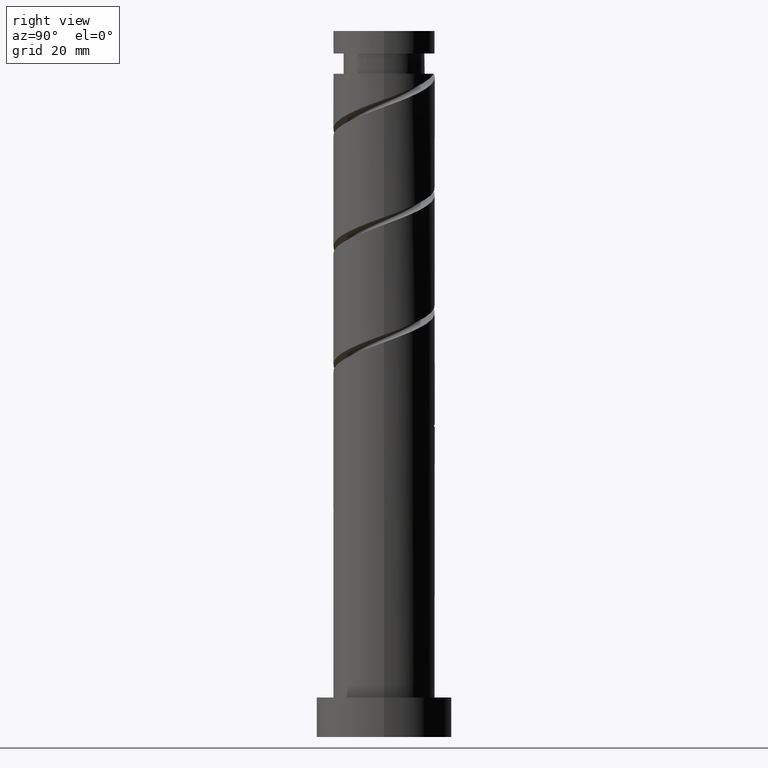
[diagram: clean part render]
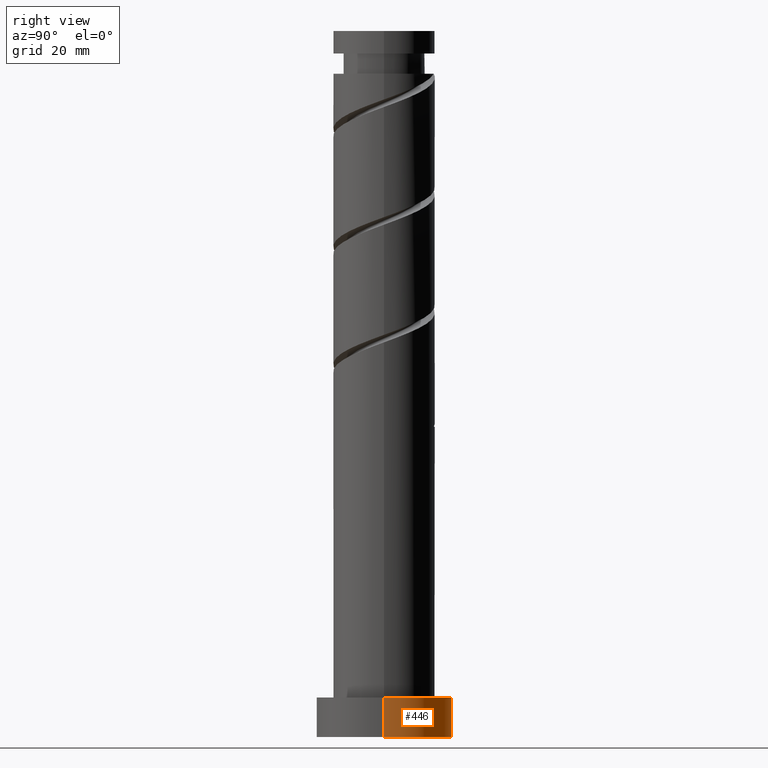
[diagram: same view with one face highlighted and labeled with its STEP entity id]
A machine part, right view. The second image highlights one B-rep face of the part: STEP entity #446.
In plain terms, the highlighted cylindrical surface (partial cylindrical patch) has radius 12 mm, axis along (-0, -0, -1).
Its self-contained STEP definition (entity closure, byte-faithful):
#29 = AXIS2_PLACEMENT_3D ( 'NONE', #1322, #106, #619 ) ;
#32 = DIRECTION ( 'NONE',  ( -0.000000000000000000, -0.000000000000000000, -1.000000000000000000 ) ) ;
#41 = EDGE_LOOP ( 'NONE', ( #587, #457, #765, #1501 ) ) ;
#45 = DIRECTION ( 'NONE',  ( 0.000000000000000000, 0.000000000000000000, 1.000000000000000000 ) ) ;
#49 = VERTEX_POINT ( 'NONE', #1271 ) ;
#68 = VERTEX_POINT ( 'NONE', #878 ) ;
#79 = EDGE_CURVE ( 'NONE', #551, #68, #1400, .T. ) ;
#84 = AXIS2_PLACEMENT_3D ( 'NONE', #1505, #45, #536 ) ;
#91 = LINE ( 'NONE', #709, #298 ) ;
#106 = DIRECTION ( 'NONE',  ( 0.000000000000000000, 0.000000000000000000, 1.000000000000000000 ) ) ;
#190 = CARTESIAN_POINT ( 'NONE',  ( -12.00000000000000178, 0.000000000000000000, 7.000000000000000000 ) ) ;
#233 = EDGE_CURVE ( 'NONE', #1275, #49, #91, .T. ) ;
#298 = VECTOR ( 'NONE', #821, 1000.000000000000000 ) ;
#426 = CARTESIAN_POINT ( 'NONE',  ( 12.00000000000000178, 1.469576158976824144E-15, 7.000000000000000000 ) ) ;
#446 = ADVANCED_FACE ( 'NONE', ( #978 ), #492, .T. ) ;
#457 = ORIENTED_EDGE ( 'NONE', *, *, #79, .T. ) ;
#492 = CYLINDRICAL_SURFACE ( 'NONE', #1509, 12.00000000000000178 ) ;
#506 = CARTESIAN_POINT ( 'NONE',  ( 0.000000000000000000, 0.000000000000000000, 7.000000000000000000 ) ) ;
#536 = DIRECTION ( 'NONE',  ( 1.000000000000000000, 0.000000000000000000, 0.000000000000000000 ) ) ;
#551 = VERTEX_POINT ( 'NONE', #426 ) ;
#584 = VECTOR ( 'NONE', #650, 1000.000000000000000 ) ;
#587 = ORIENTED_EDGE ( 'NONE', *, *, #979, .F. ) ;
#619 = DIRECTION ( 'NONE',  ( 1.000000000000000000, 0.000000000000000000, 0.000000000000000000 ) ) ;
#650 = DIRECTION ( 'NONE',  ( -0.000000000000000000, -0.000000000000000000, -1.000000000000000000 ) ) ;
#709 = CARTESIAN_POINT ( 'NONE',  ( -12.00000000000000178, 0.000000000000000000, 7.000000000000000000 ) ) ;
#716 = CIRCLE ( 'NONE', #29, 12.00000000000000178 ) ;
#765 = ORIENTED_EDGE ( 'NONE', *, *, #1366, .T. ) ;
#821 = DIRECTION ( 'NONE',  ( -0.000000000000000000, -0.000000000000000000, -1.000000000000000000 ) ) ;
#878 = CARTESIAN_POINT ( 'NONE',  ( 12.00000000000000178, 1.469576158976824144E-15, 0.000000000000000000 ) ) ;
#896 = CARTESIAN_POINT ( 'NONE',  ( 12.00000000000000178, 1.469576158976824144E-15, 7.000000000000000000 ) ) ;
#978 = FACE_OUTER_BOUND ( 'NONE', #41, .T. ) ;
#979 = EDGE_CURVE ( 'NONE', #551, #1275, #1354, .T. ) ;
#990 = DIRECTION ( 'NONE',  ( -1.000000000000000000, 0.000000000000000000, 0.000000000000000000 ) ) ;
#1271 = CARTESIAN_POINT ( 'NONE',  ( -12.00000000000000178, 0.000000000000000000, 0.000000000000000000 ) ) ;
#1275 = VERTEX_POINT ( 'NONE', #190 ) ;
#1322 = CARTESIAN_POINT ( 'NONE',  ( 0.000000000000000000, 0.000000000000000000, 0.000000000000000000 ) ) ;
#1354 = CIRCLE ( 'NONE', #84, 12.00000000000000178 ) ;
#1366 = EDGE_CURVE ( 'NONE', #68, #49, #716, .T. ) ;
#1400 = LINE ( 'NONE', #896, #584 ) ;
#1501 = ORIENTED_EDGE ( 'NONE', *, *, #233, .F. ) ;
#1505 = CARTESIAN_POINT ( 'NONE',  ( 0.000000000000000000, 0.000000000000000000, 7.000000000000000000 ) ) ;
#1509 = AXIS2_PLACEMENT_3D ( 'NONE', #506, #32, #990 ) ;